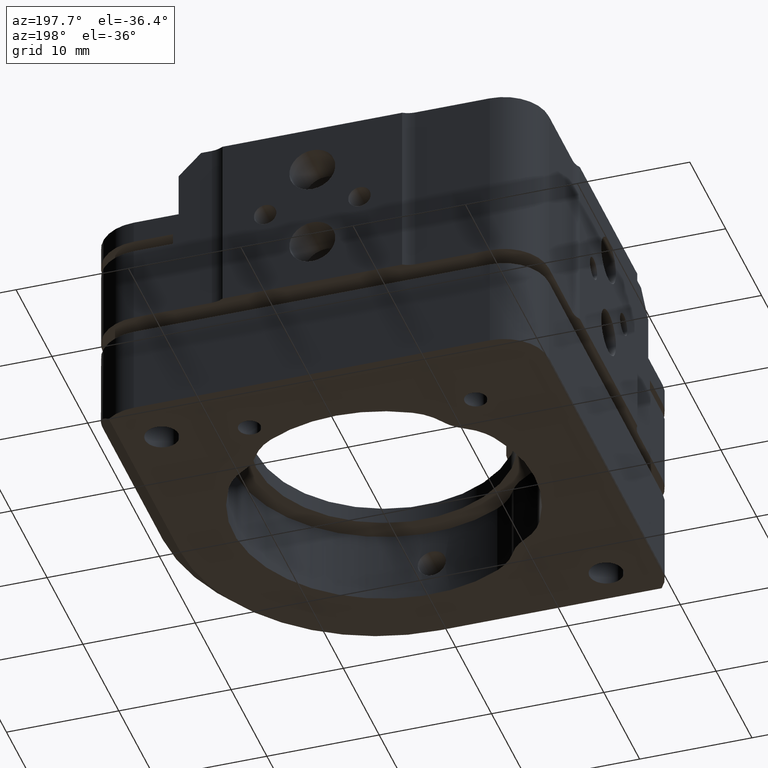
[diagram: clean part render]
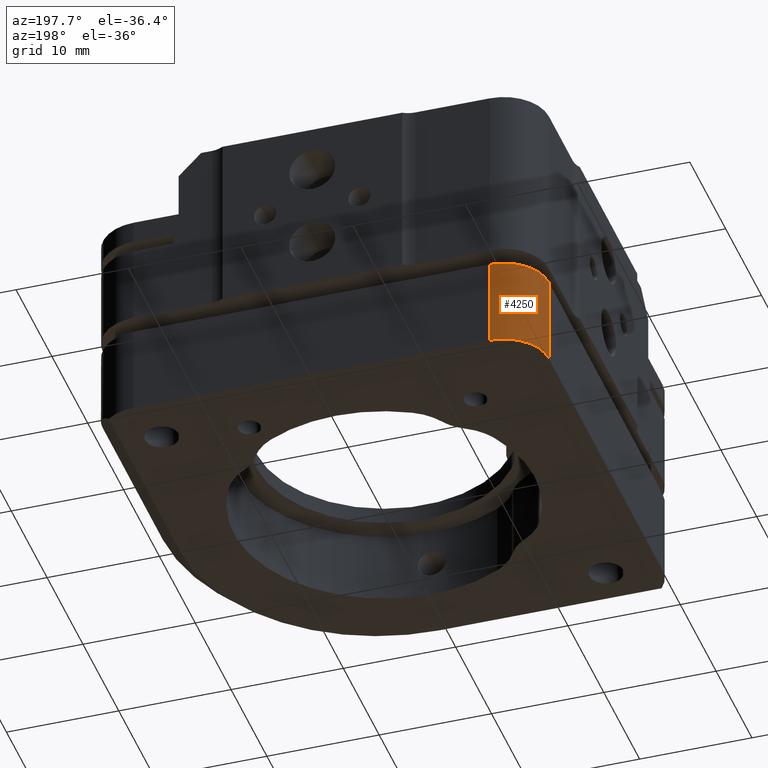
[diagram: same view with one face highlighted and labeled with its STEP entity id]
A machine part, auxiliary view. The second image highlights one B-rep face of the part: STEP entity #4250.
In plain terms, the highlighted cylindrical surface (partial cylindrical patch) has radius 4 mm, axis along (0, 0, 1).
Its self-contained STEP definition (entity closure, byte-faithful):
#55 = VERTEX_POINT ( 'NONE', #131 ) ;
#131 = CARTESIAN_POINT ( 'NONE',  ( -19.69999999999999929, 15.69999999999999929, 0.000000000000000000 ) ) ;
#282 = VERTEX_POINT ( 'NONE', #1367 ) ;
#911 = ORIENTED_EDGE ( 'NONE', *, *, #1627, .T. ) ;
#925 = DIRECTION ( 'NONE',  ( 0.000000000000000000, 0.000000000000000000, 1.000000000000000000 ) ) ;
#1054 = CARTESIAN_POINT ( 'NONE',  ( -15.69999999999999929, 19.69999999999999929, 0.000000000000000000 ) ) ;
#1285 = CYLINDRICAL_SURFACE ( 'NONE', #3299, 4.000000000000000000 ) ;
#1367 = CARTESIAN_POINT ( 'NONE',  ( -15.69999999999999929, 19.69999999999999929, 0.000000000000000000 ) ) ;
#1396 = CARTESIAN_POINT ( 'NONE',  ( -19.69999999999999929, 15.69999999999999929, 8.000000000000000000 ) ) ;
#1589 = CARTESIAN_POINT ( 'NONE',  ( -15.69999999999999929, 15.69999999999999929, 0.000000000000000000 ) ) ;
#1627 = EDGE_CURVE ( 'NONE', #2686, #282, #3589, .T. ) ;
#1758 = DIRECTION ( 'NONE',  ( 0.000000000000000000, -0.000000000000000000, -1.000000000000000000 ) ) ;
#1888 = CIRCLE ( 'NONE', #1956, 4.000000000000000000 ) ;
#1956 = AXIS2_PLACEMENT_3D ( 'NONE', #3814, #2285, #4521 ) ;
#1998 = DIRECTION ( 'NONE',  ( 1.000000000000000000, 0.000000000000000000, 0.000000000000000000 ) ) ;
#2012 = EDGE_LOOP ( 'NONE', ( #4553, #3854, #2252, #911 ) ) ;
#2252 = ORIENTED_EDGE ( 'NONE', *, *, #2533, .T. ) ;
#2285 = DIRECTION ( 'NONE',  ( -0.000000000000000000, -0.000000000000000000, -1.000000000000000000 ) ) ;
#2533 = EDGE_CURVE ( 'NONE', #2841, #2686, #1888, .T. ) ;
#2686 = VERTEX_POINT ( 'NONE', #3860 ) ;
#2841 = VERTEX_POINT ( 'NONE', #1396 ) ;
#2858 = CIRCLE ( 'NONE', #4252, 4.000000000000000000 ) ;
#2863 = CARTESIAN_POINT ( 'NONE',  ( -19.69999999999999929, 15.69999999999999929, 0.000000000000000000 ) ) ;
#3101 = VECTOR ( 'NONE', #3598, 1000.000000000000000 ) ;
#3182 = EDGE_CURVE ( 'NONE', #282, #55, #2858, .T. ) ;
#3275 = DIRECTION ( 'NONE',  ( 1.000000000000000000, 0.000000000000000000, 0.000000000000000000 ) ) ;
#3299 = AXIS2_PLACEMENT_3D ( 'NONE', #4264, #925, #3275 ) ;
#3364 = VECTOR ( 'NONE', #1758, 1000.000000000000000 ) ;
#3589 = LINE ( 'NONE', #1054, #3364 ) ;
#3598 = DIRECTION ( 'NONE',  ( 0.000000000000000000, 0.000000000000000000, 1.000000000000000000 ) ) ;
#3704 = LINE ( 'NONE', #2863, #3101 ) ;
#3814 = CARTESIAN_POINT ( 'NONE',  ( -15.69999999999999929, 15.69999999999999929, 8.000000000000000000 ) ) ;
#3830 = EDGE_CURVE ( 'NONE', #55, #2841, #3704, .T. ) ;
#3854 = ORIENTED_EDGE ( 'NONE', *, *, #3830, .T. ) ;
#3860 = CARTESIAN_POINT ( 'NONE',  ( -15.69999999999999929, 19.69999999999999929, 8.000000000000000000 ) ) ;
#4250 = ADVANCED_FACE ( 'NONE', ( #4631 ), #1285, .T. ) ;
#4252 = AXIS2_PLACEMENT_3D ( 'NONE', #1589, #4582, #1998 ) ;
#4264 = CARTESIAN_POINT ( 'NONE',  ( -15.69999999999999929, 15.69999999999999929, 0.000000000000000000 ) ) ;
#4521 = DIRECTION ( 'NONE',  ( 1.000000000000000000, 0.000000000000000000, 0.000000000000000000 ) ) ;
#4553 = ORIENTED_EDGE ( 'NONE', *, *, #3182, .T. ) ;
#4582 = DIRECTION ( 'NONE',  ( 0.000000000000000000, 0.000000000000000000, 1.000000000000000000 ) ) ;
#4631 = FACE_OUTER_BOUND ( 'NONE', #2012, .T. ) ;